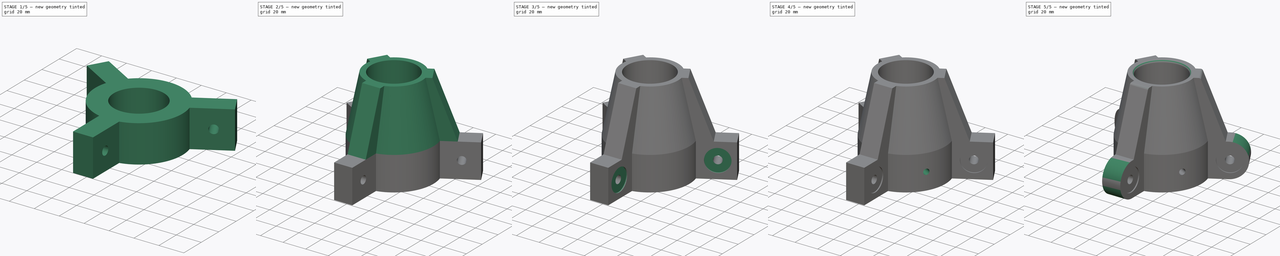
[diagram: build sequence overview — one tinted view per stage of 5, left to right]
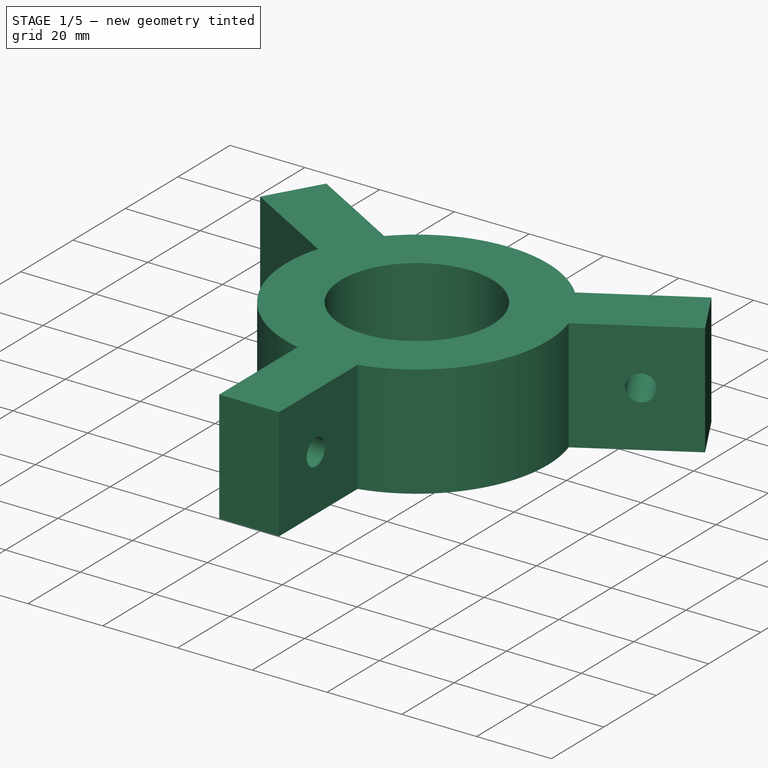
[diagram: stage 1 of 5 — iso view after this stage's code; geometry added in this stage tinted green]
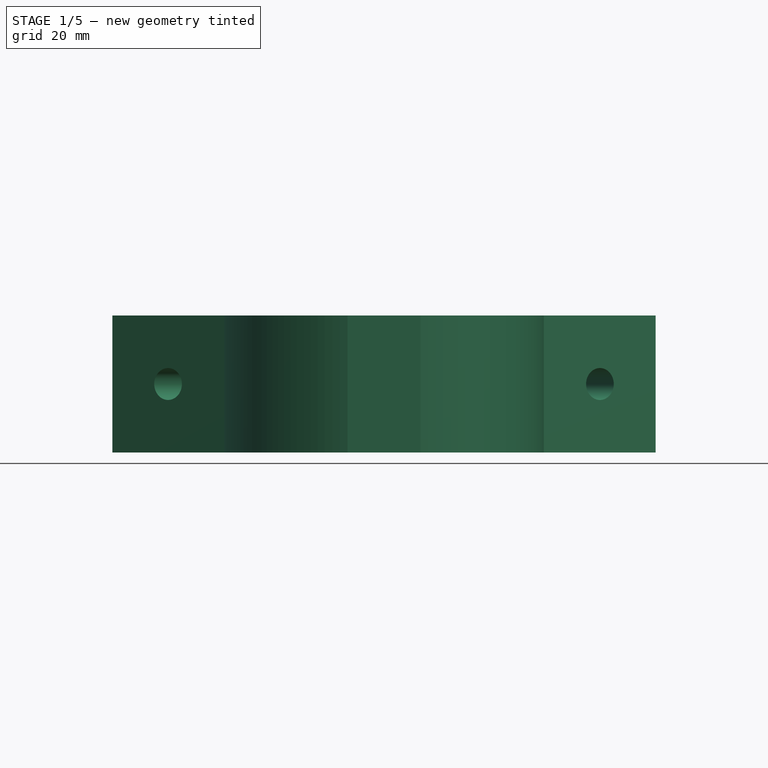
[diagram: stage 1 of 5 — front view after this stage's code; geometry added in this stage tinted green]
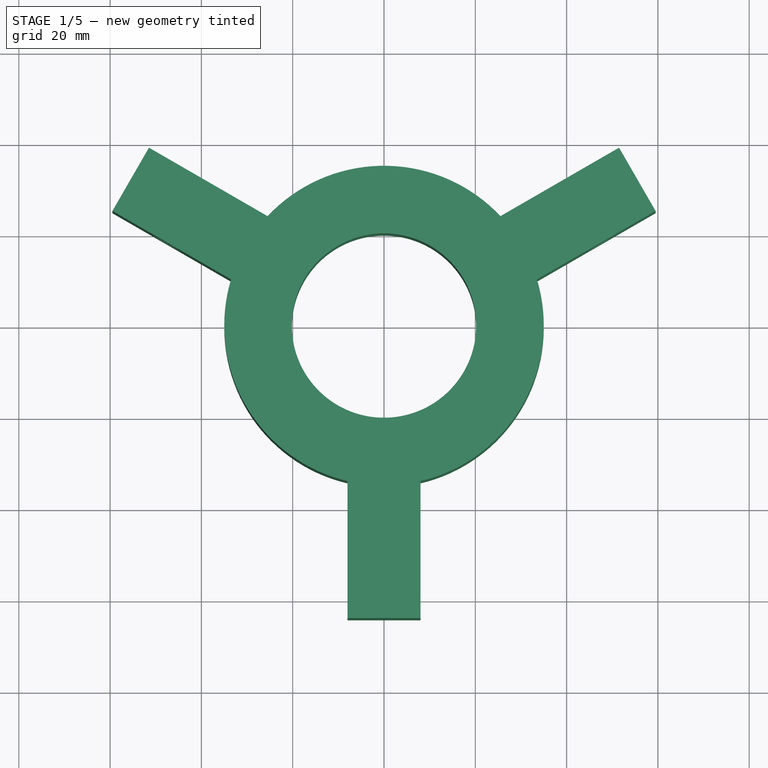
[diagram: stage 1 of 5 — top view after this stage's code; geometry added in this stage tinted green]
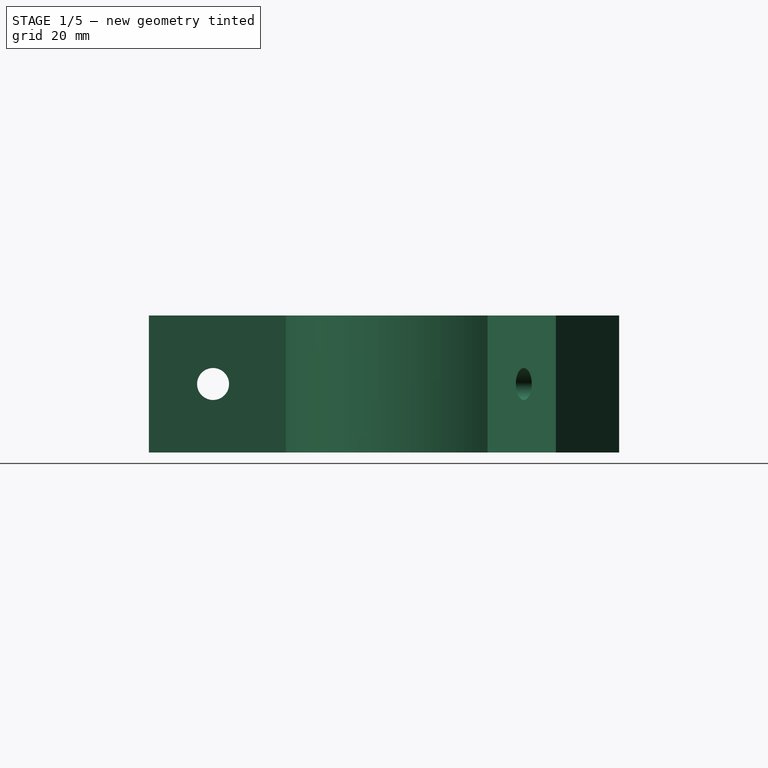
[diagram: stage 1 of 5 — right view after this stage's code; geometry added in this stage tinted green]
FCSTD DOCUMENT  (FreeCAD 0.19R)
Label: topholder
License: All rights reserved
LicenseURL: http://en.wikipedia.org/wiki/All_rights_reserved
objects: Sketcher::SketchObject×18, PartDesign::Pocket×15, PartDesign::Fillet×2, PartDesign::Pad×1, PartDesign::AdditiveLoft×1, PartDesign::Body×1
note: 57 computed .brp shape members not serialized (recipe doc carries the construction recipe); baked Part::Feature solids carry a one-line shape summary decoded from their .brp

FEATURE [Sketcher::SketchObject] Sketch001  label="SketchHinge"
  MapMode = 5
  Support = -> [XY_Plane]
  sketch-geometry (13):
    g0: ArcOfCircle CenterX=0 CenterY=0 CenterZ=0 NormalX=0 NormalY=0 NormalZ=1 AngleXU=0 Radius=35 StartAngle=2.8486 EndAngle=4.48178
    g1: LineSegment StartX=-8 StartY=-34.0735 StartZ=0 EndX=-8 EndY=-64.0735 EndZ=0
    g2: LineSegment StartX=-8 StartY=-64.0735 StartZ=0 EndX=8 EndY=-64.0735 EndZ=0
    g3: LineSegment StartX=8 StartY=-64.0735 StartZ=0 EndX=8 EndY=-34.0735 EndZ=0
    g4: LineSegment StartX=-33.5085 StartY=10.1085 StartZ=0 EndX=-59.4892 EndY=25.1085 EndZ=0
    g5: LineSegment StartX=-59.4892 StartY=25.1085 StartZ=0 EndX=-51.4892 EndY=38.9649 EndZ=0
    g6: LineSegment StartX=-51.4892 StartY=38.9649 StartZ=0 EndX=-25.5085 EndY=23.9649 EndZ=0
    g7: LineSegment StartX=25.5085 StartY=23.9649 StartZ=0 EndX=51.4892 EndY=38.9649 EndZ=0
    g8: LineSegment StartX=51.4892 StartY=38.9649 StartZ=0 EndX=59.4892 EndY=25.1085 EndZ=0
    g9: LineSegment StartX=59.4892 StartY=25.1085 StartZ=0 EndX=33.5085 EndY=10.1085 EndZ=0
    g10: Circle CenterX=0 CenterY=0 CenterZ=0 NormalX=0 NormalY=0 NormalZ=1 AngleXU=0 Radius=20.2
    g11: ArcOfCircle CenterX=0 CenterY=0 CenterZ=0 NormalX=0 NormalY=0 NormalZ=1 AngleXU=0 Radius=35 StartAngle=0.754209 EndAngle=2.38738
    g12: ArcOfCircle CenterX=0 CenterY=0 CenterZ=0 NormalX=0 NormalY=0 NormalZ=1 AngleXU=0 Radius=35 StartAngle=4.943 EndAngle=6.57617
  constraints (40):
    c: Coincident(g0,g-1)
    c: Diameter(g0) = 70
    c: Vertical(g1)
    c: Coincident(g1,g2)
    c: Horizontal(g2)
    c: Coincident(g2,g3)
    c: Vertical(g3)
    c: Coincident(g4,g5)
    c: Coincident(g5,g6)
    c: Coincident(g7,g8)
    c: Coincident(g8,g9)
    c: Parallel(g4,g6)
    c: Parallel(g7,g9)
    c: DistanceX(g2,g2) = 16  'lug_width'
    c: Equal(g2,g5)
    c: Equal(g2,g8)
    c: Angle(g9,g-2) = 1.0472
    c: Angle(g-2,g4) = 1.0472
    c: Equal(g4,g6)
    c: Equal(g1,g4)
    c: Equal(g1,g9)
    c: Equal(g9,g7)
    c: Equal(g2,g5)
    c: Equal(g2,g8)
    c: Perpendicular(g5,g4)
    c: Perpendicular(g8,g9)
    c: DistanceX(g1,g-1) = 8
    c: Coincident(g10,g0)
    c: Diameter(g10) = 40.4  'inner_diameter'
    c: Coincident(g0,g4)
    c: Coincident(g11,g6)
    c: Equal(g0,g11)
    c: Coincident(g12,g9)
    c: Coincident(g11,g7)
    c: Coincident(g0,g11)
    c: Equal(g0,g12)
    c: Coincident(g0,g1)
    c: Coincident(g12,g3)
    c: Coincident(g0,g12)
    c: DistanceY(g1,g1) = 30
FEATURE [PartDesign::Pad] Pad
  AllowMultiFace = false
  Length = 30
  Length2 = 100
  Profile = -> Sketch001
  Type = 0
FEATURE [Sketcher::SketchObject] Sketch
  MapMode = 5
  Placement = pos=(0,0,30) rot=(0,0,1;0rad)
  Support = -> [Pad]
  expr: Constraints[7] = <<SketchHinge>>.Constraints.lug_width
  expr: Constraints[37] = <<SketchHinge>>.Constraints.inner_diameter
  sketch-geometry (13):
    g0: ArcOfCircle CenterX=0 CenterY=0 CenterZ=0 NormalX=0 NormalY=0 NormalZ=1 AngleXU=0 Radius=35 StartAngle=2.8486 EndAngle=4.48178
    g1: LineSegment StartX=-8 StartY=-34.0735 StartZ=0 EndX=-8 EndY=-47.0735 EndZ=0
    g2: LineSegment StartX=-8 StartY=-47.0735 StartZ=0 EndX=8 EndY=-47.0735 EndZ=0
    g3: LineSegment StartX=8 StartY=-47.0735 StartZ=0 EndX=8 EndY=-34.0735 EndZ=0
    g4: LineSegment StartX=-33.5085 StartY=10.1085 StartZ=0 EndX=-44.7668 EndY=16.6085 EndZ=0
    g5: LineSegment StartX=-44.7668 StartY=16.6085 StartZ=0 EndX=-36.7668 EndY=30.4649 EndZ=0
    g6: LineSegment StartX=-36.7668 StartY=30.4649 StartZ=0 EndX=-25.5085 EndY=23.9649 EndZ=0
    g7: LineSegment StartX=25.5085 StartY=23.9649 StartZ=0 EndX=36.7668 EndY=30.4649 EndZ=0
    g8: LineSegment StartX=36.7668 StartY=30.4649 StartZ=0 EndX=44.7668 EndY=16.6085 EndZ=0
    g9: LineSegment StartX=44.7668 StartY=16.6085 StartZ=0 EndX=33.5085 EndY=10.1085 EndZ=0
    g10: ArcOfCircle CenterX=0 CenterY=0 CenterZ=0 NormalX=0 NormalY=0 NormalZ=1 AngleXU=0 Radius=35 StartAngle=0.754209 EndAngle=2.38738
    g11: ArcOfCircle CenterX=0 CenterY=0 CenterZ=0 NormalX=0 NormalY=0 NormalZ=1 AngleXU=0 Radius=35 StartAngle=4.943 EndAngle=6.57617
    g12: Circle CenterX=0 CenterY=0 CenterZ=0 NormalX=0 NormalY=0 NormalZ=1 AngleXU=0 Radius=20.2
  constraints (38):
    c: Diameter(g0) = 70
    c: Coincident(g0,g-1)
    c: Vertical(g1)
    c: Coincident(g1,g2)
    c: Horizontal(g2)
    c: Coincident(g2,g3)
    c: Vertical(g3)
    c: DistanceX(g2,g2) = 16
    c: Equal(g1,g3)
    c: Coincident(g4,g5)
    c: Coincident(g5,g6)
    c: Coincident(g7,g8)
    c: Coincident(g8,g9)
    c: Parallel(g4,g6)
    c: Parallel(g7,g9)
    c: Equal(g1,g4)
    c: Equal(g4,g6)
    c: Equal(g6,g7)
    c: Equal(g7,g9)
    c: Perpendicular(g5,g4)
    c: Perpendicular(g8,g9)
    c: Equal(g2,g5)
    c: Equal(g5,g8)
    c: Angle(g-2,g4) = 1.0472
    c: Angle(g9,g-2) = 1.0472
    c: Coincident(g0,g4)
    c: Coincident(g10,g6)
    c: Equal(g0,g10)
    c: Coincident(g11,g9)
    c: Coincident(g10,g7)
    c: Coincident(g0,g10)
    c: Equal(g0,g11)
    c: Coincident(g0,g1)
    c: Coincident(g11,g3)
    c: Coincident(g0,g11)
    c: DistanceY(g1,g1) = 13
    c: Coincident(g12,g0)
    c: Diameter(g12) = 40.4
FEATURE [Sketcher::SketchObject] Sketch002  label="SketchHingeHole001"
  MapMode = 5
  Placement = pos=(4,-6.9282,0) rot=(0.935113,0.250563,0.250563;1.63783rad)
  Support = -> [Pad]
  sketch-geometry (1):
    g0: Circle CenterX=50 CenterY=15 CenterZ=0 NormalX=0 NormalY=0 NormalZ=1 AngleXU=0 Radius=3.5
  constraints (3):
    c: Diameter(g0) = 7
    c: DistanceX(g-1,g0) = 50
    c: DistanceY(g-1,g0) = 15
FEATURE [PartDesign::Pocket] Pocket
  AllowMultiFace = false
  BaseFeature = -> Pad
  Length = 5
  Length2 = 100
  Profile = -> Sketch002
  Type = 1
FEATURE [Sketcher::SketchObject] CopySketch003  label="SketchHingeHole002"
  Placement = pos=(5,8.66025,-4e-15) rot=(0.186157,0.694747,0.694747;2.77349rad)
  sketch-geometry (1):
    g0: Circle CenterX=50 CenterY=15 CenterZ=0 NormalX=0 NormalY=0 NormalZ=1 AngleXU=0 Radius=3.5
  constraints (3):
    c: Diameter(g0) = 7
    c: DistanceX(g-1,g0) = 50
    c: DistanceY(g-1,g0) = 15
FEATURE [PartDesign::Pocket] Pocket001
  AllowMultiFace = false
  BaseFeature = -> Pocket
  Length = 5
  Length2 = 100
  Profile = -> CopySketch003
  Type = 1
FEATURE [Sketcher::SketchObject] CopySketch003001  label="SketchHingeHole003"
  Placement = pos=(-10,0,0) rot=(0.57735,-0.57735,-0.57735;2.0944rad)
  sketch-geometry (1):
    g0: Circle CenterX=50 CenterY=15 CenterZ=0 NormalX=0 NormalY=0 NormalZ=1 AngleXU=0 Radius=3.5
  constraints (3):
    c: Diameter(g0) = 7
    c: DistanceX(g-1,g0) = 50
    c: DistanceY(g-1,g0) = 15
FEATURE [PartDesign::Pocket] Pocket002
  AllowMultiFace = false
  BaseFeature = -> Pocket001
  Length = 5
  Length2 = 100
  Profile = -> CopySketch003001
  Type = 1
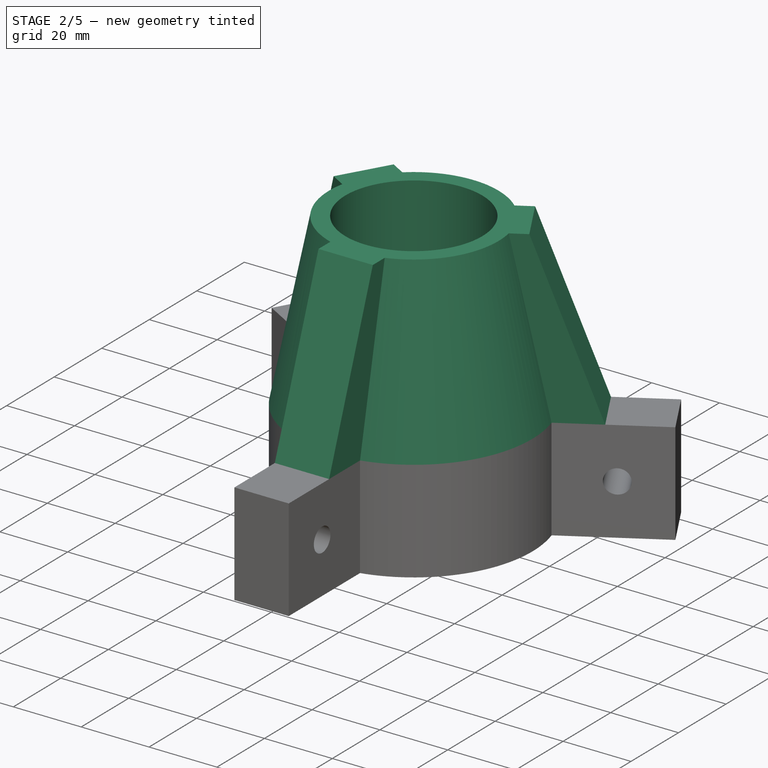
[diagram: stage 2 of 5 — iso view after this stage's code; geometry added in this stage tinted green]
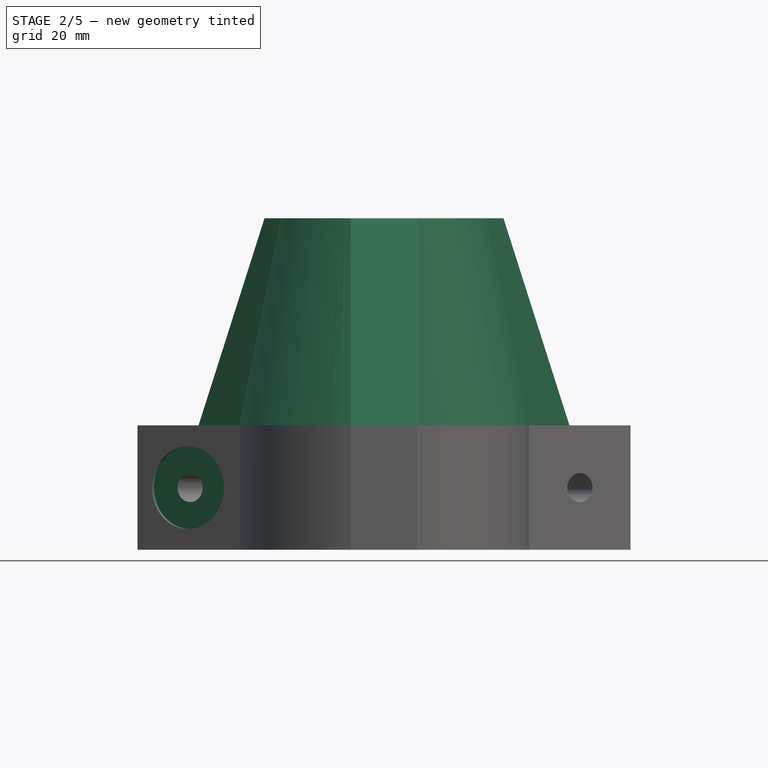
[diagram: stage 2 of 5 — front view after this stage's code; geometry added in this stage tinted green]
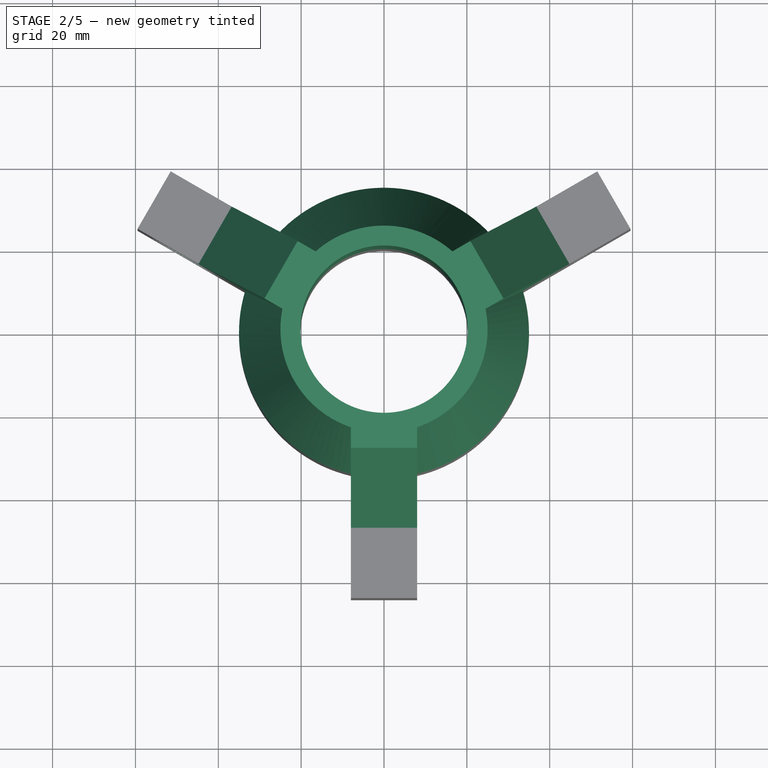
[diagram: stage 2 of 5 — top view after this stage's code; geometry added in this stage tinted green]
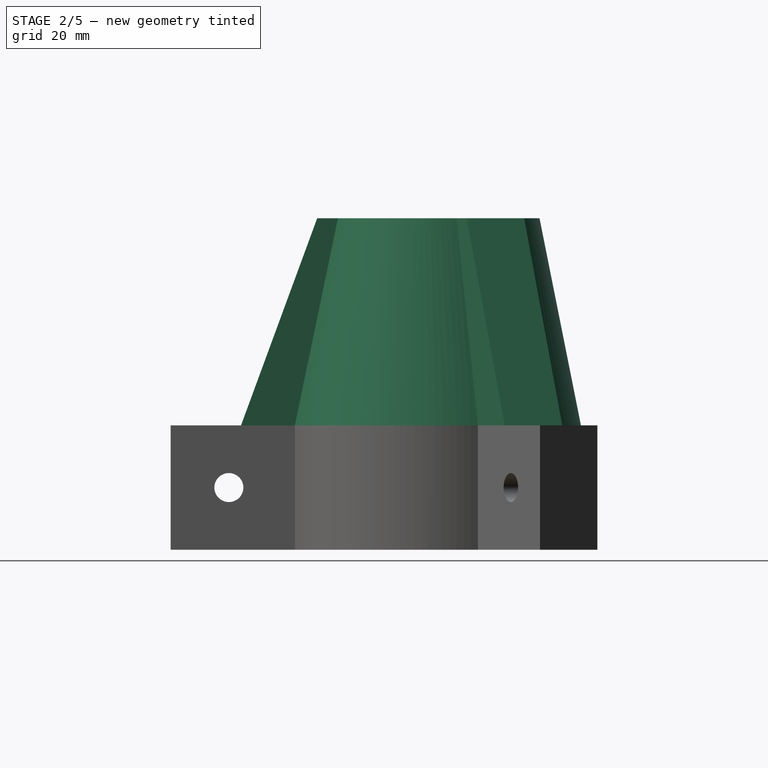
[diagram: stage 2 of 5 — right view after this stage's code; geometry added in this stage tinted green]
FEATURE [Sketcher::SketchObject] Sketch003
  AttachmentOffset = pos=(0,0,50) rot=(0,0,1;0rad)
  MapMode = 5
  Placement = pos=(0,0,80) rot=(0,0,1;0rad)
  Support = -> [Pad]
  expr: Constraints[7] = <<SketchHinge>>.Constraints.lug_width
  expr: Constraints[37] = <<SketchHinge>>.Constraints.inner_diameter
  sketch-geometry (13):
    g0: ArcOfCircle CenterX=0 CenterY=0 CenterZ=0 NormalX=0 NormalY=0 NormalZ=1 AngleXU=0 Radius=25 StartAngle=2.94372 EndAngle=4.38666
    g1: LineSegment StartX=-8 StartY=-23.6854 StartZ=0 EndX=-8 EndY=-28.6854 EndZ=0
    g2: LineSegment StartX=-8 StartY=-28.6854 StartZ=0 EndX=8 EndY=-28.6854 EndZ=0
    g3: LineSegment StartX=8 StartY=-28.6854 StartZ=0 EndX=8 EndY=-23.6854 EndZ=0
    g4: LineSegment StartX=-24.5122 StartY=4.91452 StartZ=0 EndX=-28.8423 EndY=7.41452 EndZ=0
    g5: LineSegment StartX=-28.8423 StartY=7.41452 StartZ=0 EndX=-20.8423 EndY=21.2709 EndZ=0
    g6: LineSegment StartX=-20.8423 StartY=21.2709 StartZ=0 EndX=-16.5122 EndY=18.7709 EndZ=0
    g7: LineSegment StartX=16.5122 StartY=18.7709 StartZ=0 EndX=20.8423 EndY=21.2709 EndZ=0
    g8: LineSegment StartX=20.8423 StartY=21.2709 StartZ=0 EndX=28.8423 EndY=7.41452 EndZ=0
    g9: LineSegment StartX=28.8423 StartY=7.41452 StartZ=0 EndX=24.5122 EndY=4.91452 EndZ=0
    g10: ArcOfCircle CenterX=0 CenterY=0 CenterZ=0 NormalX=0 NormalY=0 NormalZ=1 AngleXU=0 Radius=25 StartAngle=0.849328 EndAngle=2.29226
    g11: ArcOfCircle CenterX=0 CenterY=0 CenterZ=0 NormalX=0 NormalY=0 NormalZ=1 AngleXU=0 Radius=25 StartAngle=5.03812 EndAngle=6.48105
    g12: Circle CenterX=0 CenterY=0 CenterZ=0 NormalX=0 NormalY=0 NormalZ=1 AngleXU=0 Radius=20.2
  constraints (38):
    c: Diameter(g0) = 50
    c: Coincident(g0,g-1)
    c: Vertical(g1)
    c: Coincident(g1,g2)
    c: Horizontal(g2)
    c: Coincident(g2,g3)
    c: Vertical(g3)
    c: DistanceX(g2,g2) = 16
    c: Equal(g1,g3)
    c: Coincident(g4,g5)
    c: Coincident(g5,g6)
    c: Coincident(g7,g8)
    c: Coincident(g8,g9)
    c: Parallel(g4,g6)
    c: Parallel(g7,g9)
    c: Equal(g1,g4)
    c: Equal(g4,g6)
    c: Equal(g6,g7)
    c: Equal(g7,g9)
    c: Perpendicular(g5,g4)
    c: Perpendicular(g8,g9)
    c: Equal(g2,g5)
    c: Equal(g5,g8)
    c: Angle(g-2,g4) = 1.0472
    c: Angle(g9,g-2) = 1.0472
    c: Coincident(g0,g4)
    c: Coincident(g10,g6)
    c: Equal(g0,g10)
    c: Coincident(g11,g9)
    c: Coincident(g10,g7)
    c: Coincident(g0,g10)
    c: Equal(g0,g11)
    c: Coincident(g0,g1)
    c: Coincident(g11,g3)
    c: Coincident(g0,g11)
    c: DistanceY(g1,g1) = 5
    c: Coincident(g12,g0)
    c: Diameter(g12) = 40.4
FEATURE [PartDesign::AdditiveLoft] AdditiveLoft
  AllowMultiFace = false
  BaseFeature = -> Pocket002
  Closed = false
  Profile = -> Sketch
  Ruled = false
  Sections = -> [Sketch003]
FEATURE [Sketcher::SketchObject] Sketch004  label="SketchNotch001"
  MapMode = 5
  Placement = pos=(-4,-6.9282,0) rot=(0.186157,0.694747,0.694747;2.77349rad)
  Support = -> [AdditiveLoft]
  sketch-geometry (1):
    g0: Circle CenterX=50 CenterY=15 CenterZ=0 NormalX=0 NormalY=0 NormalZ=1 AngleXU=0 Radius=10
  constraints (3):
    c: Diameter(g0) = 20
    c: DistanceY(g-1,g0) = 15
    c: DistanceX(g-1,g0) = 50
FEATURE [PartDesign::Pocket] Pocket003
  AllowMultiFace = false
  BaseFeature = -> AdditiveLoft
  Length = 1
  Length2 = 100
  Profile = -> Sketch004
  Reversed = true
  Type = 0
FEATURE [Sketcher::SketchObject] CopySketch005
  MapMode = 5
  Placement = pos=(-8,0,0) rot=(0.57735,-0.57735,-0.57735;2.0944rad)
  Support = -> [AdditiveLoft]
  sketch-geometry (1):
    g0: Circle CenterX=50 CenterY=15 CenterZ=0 NormalX=0 NormalY=0 NormalZ=1 AngleXU=0 Radius=10
  constraints (3):
    c: Diameter(g0) = 20
    c: DistanceY(g-1,g0) = 15
    c: DistanceX(g-1,g0) = 50
FEATURE [PartDesign::Pocket] Pocket004
  AllowMultiFace = false
  BaseFeature = -> Pocket003
  Length = 1
  Length2 = 100
  Profile = -> CopySketch005
  Type = 0
FEATURE [Sketcher::SketchObject] CopySketch005001
  MapMode = 5
  Placement = pos=(4,6.9282,0) rot=(0.186157,0.694747,0.694747;2.77349rad)
  Support = -> [Pocket004]
  sketch-geometry (1):
    g0: Circle CenterX=50 CenterY=15 CenterZ=0 NormalX=0 NormalY=0 NormalZ=1 AngleXU=0 Radius=10
  constraints (3):
    c: Diameter(g0) = 20
    c: DistanceY(g-1,g0) = 15
    c: DistanceX(g-1,g0) = 50
FEATURE [PartDesign::Pocket] Pocket005
  AllowMultiFace = false
  BaseFeature = -> Pocket004
  Length = 1
  Length2 = 100
  Profile = -> CopySketch005001
  Type = 0
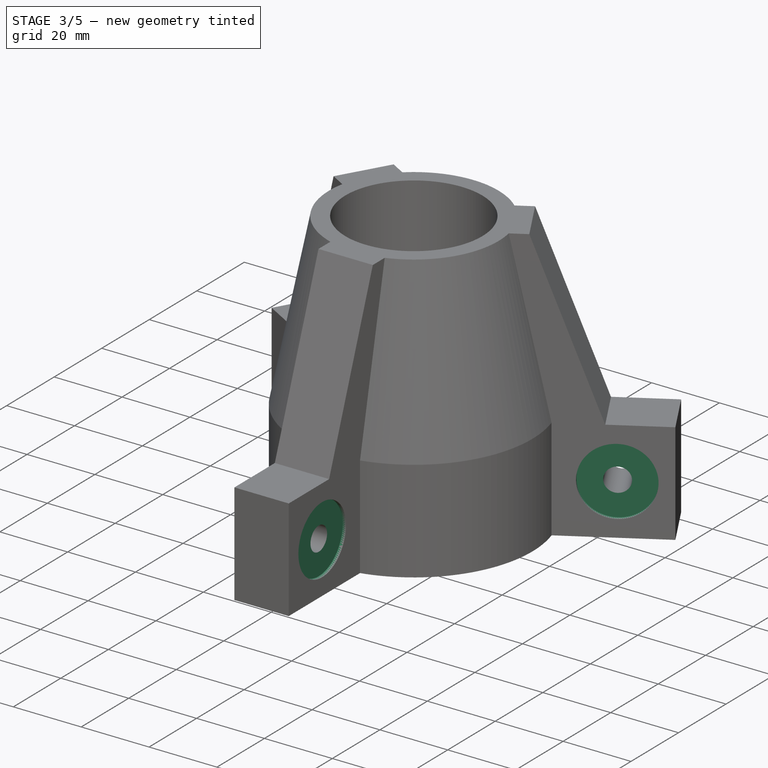
[diagram: stage 3 of 5 — iso view after this stage's code; geometry added in this stage tinted green]
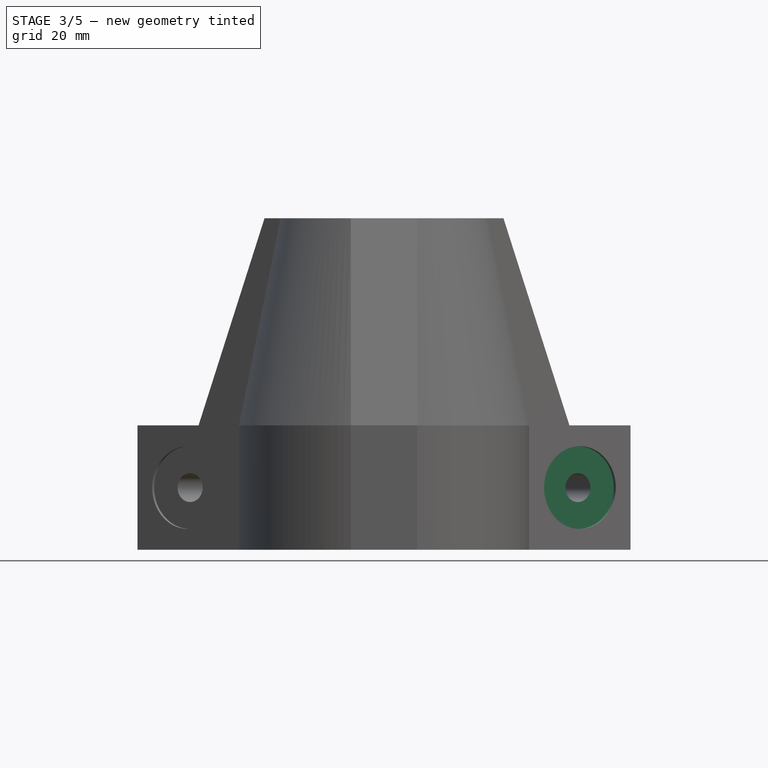
[diagram: stage 3 of 5 — front view after this stage's code; geometry added in this stage tinted green]
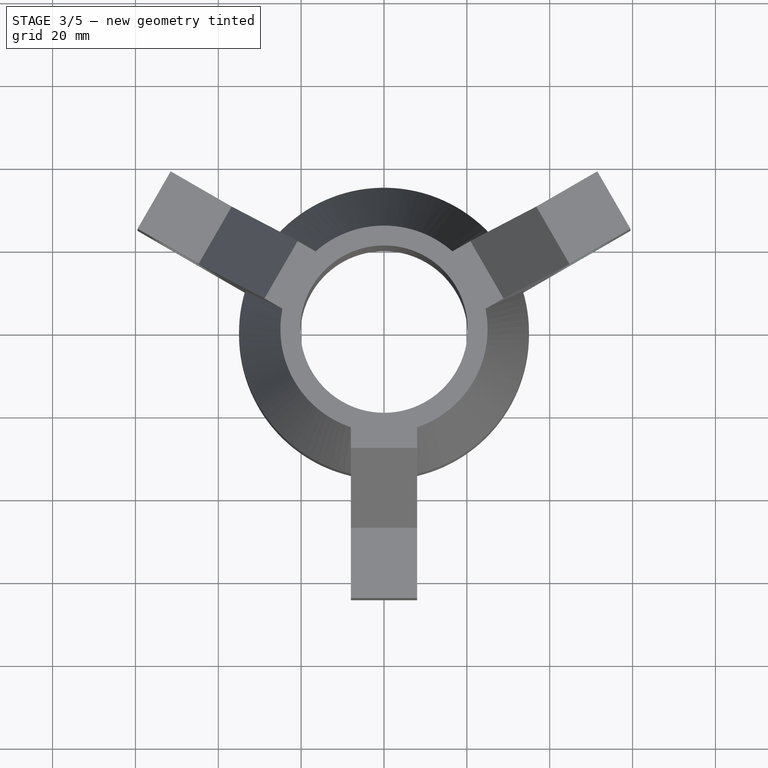
[diagram: stage 3 of 5 — top view after this stage's code; geometry added in this stage tinted green]
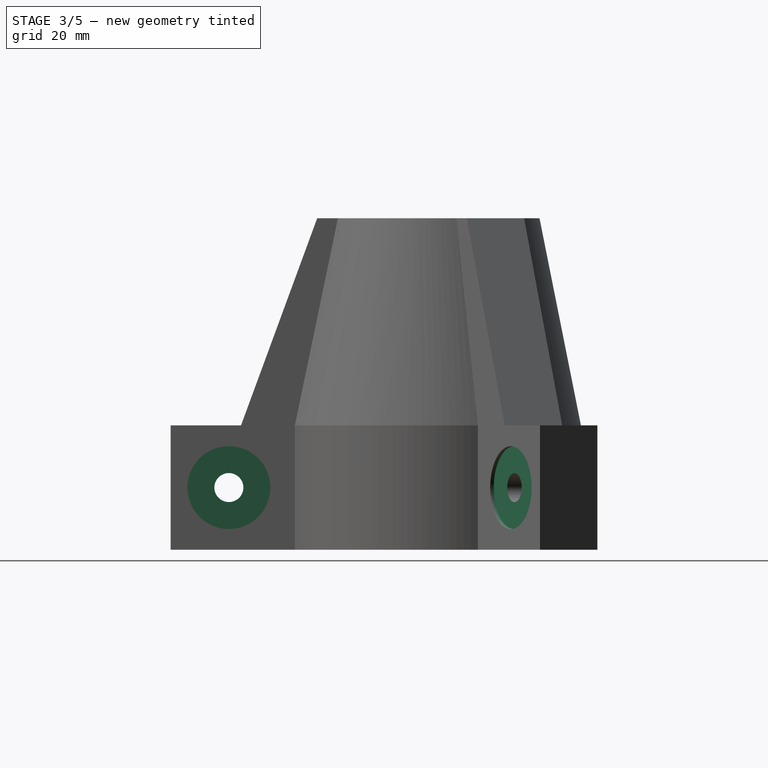
[diagram: stage 3 of 5 — right view after this stage's code; geometry added in this stage tinted green]
FEATURE [Sketcher::SketchObject] CopySketch005002
  MapMode = 5
  Placement = pos=(4,-6.9282,0) rot=(0.935113,0.250563,0.250563;1.63783rad)
  Support = -> [Pocket005]
  sketch-geometry (1):
    g0: Circle CenterX=50 CenterY=15 CenterZ=0 NormalX=0 NormalY=0 NormalZ=1 AngleXU=0 Radius=10
  constraints (3):
    c: Diameter(g0) = 20
    c: DistanceY(g-1,g0) = 15
    c: DistanceX(g-1,g0) = 50
FEATURE [PartDesign::Pocket] Pocket006
  AllowMultiFace = false
  BaseFeature = -> Pocket005
  Length = 1
  Length2 = 100
  Profile = -> CopySketch005002
  Type = 0
FEATURE [Sketcher::SketchObject] CopySketch005003
  MapMode = 5
  Placement = pos=(-4,6.9282,0) rot=(0.935113,0.250563,0.250563;1.63783rad)
  Support = -> [Pocket006]
  sketch-geometry (1):
    g0: Circle CenterX=50 CenterY=15 CenterZ=0 NormalX=0 NormalY=0 NormalZ=1 AngleXU=0 Radius=10
  constraints (3):
    c: Diameter(g0) = 20
    c: DistanceY(g-1,g0) = 15
    c: DistanceX(g-1,g0) = 50
FEATURE [PartDesign::Pocket] Pocket007
  AllowMultiFace = false
  BaseFeature = -> Pocket006
  Length = 1
  Length2 = 100
  Profile = -> CopySketch005003
  Reversed = true
  Type = 0
FEATURE [Sketcher::SketchObject] CopySketch005004
  MapMode = 5
  Placement = pos=(8,0,0) rot=(0.57735,-0.57735,-0.57735;2.0944rad)
  Support = -> [Pocket007]
  sketch-geometry (1):
    g0: Circle CenterX=50 CenterY=15 CenterZ=0 NormalX=0 NormalY=0 NormalZ=1 AngleXU=0 Radius=10
  constraints (3):
    c: Diameter(g0) = 20
    c: DistanceY(g-1,g0) = 15
    c: DistanceX(g-1,g0) = 50
FEATURE [PartDesign::Pocket] Pocket008
  AllowMultiFace = false
  BaseFeature = -> Pocket007
  Length = 1
  Length2 = 100
  Profile = -> CopySketch005004
  Reversed = true
  Type = 0
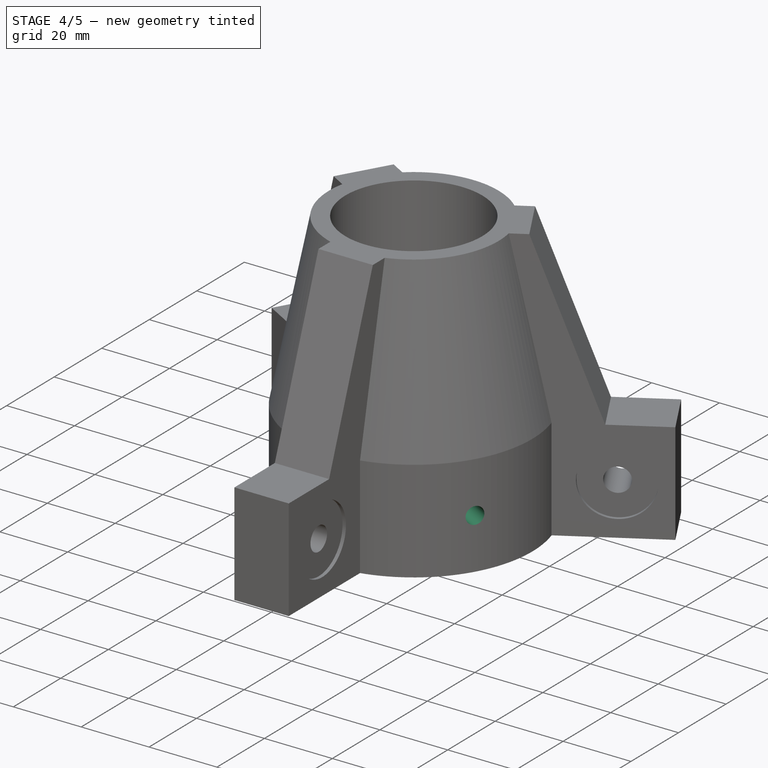
[diagram: stage 4 of 5 — iso view after this stage's code; geometry added in this stage tinted green]
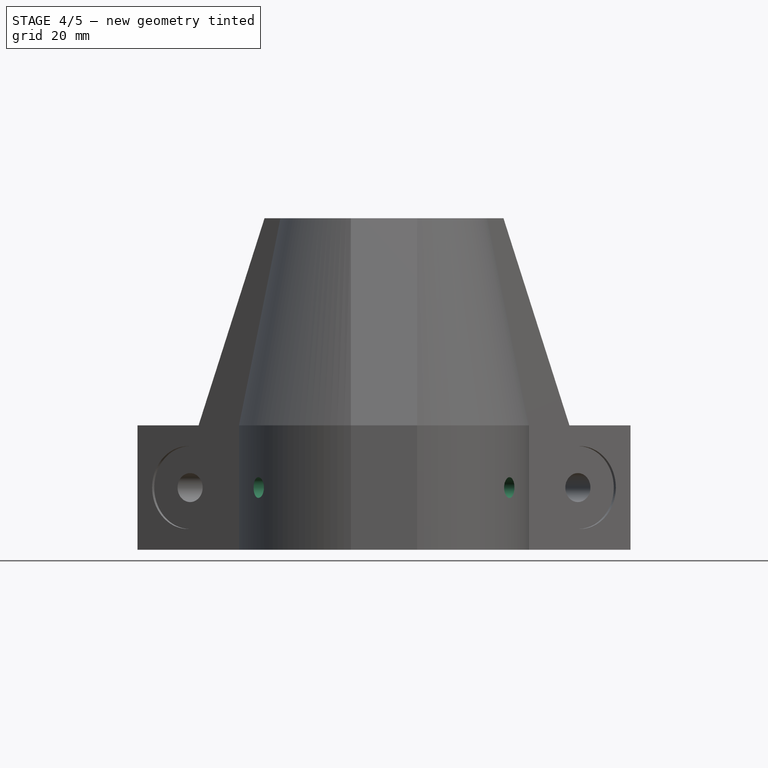
[diagram: stage 4 of 5 — front view after this stage's code; geometry added in this stage tinted green]
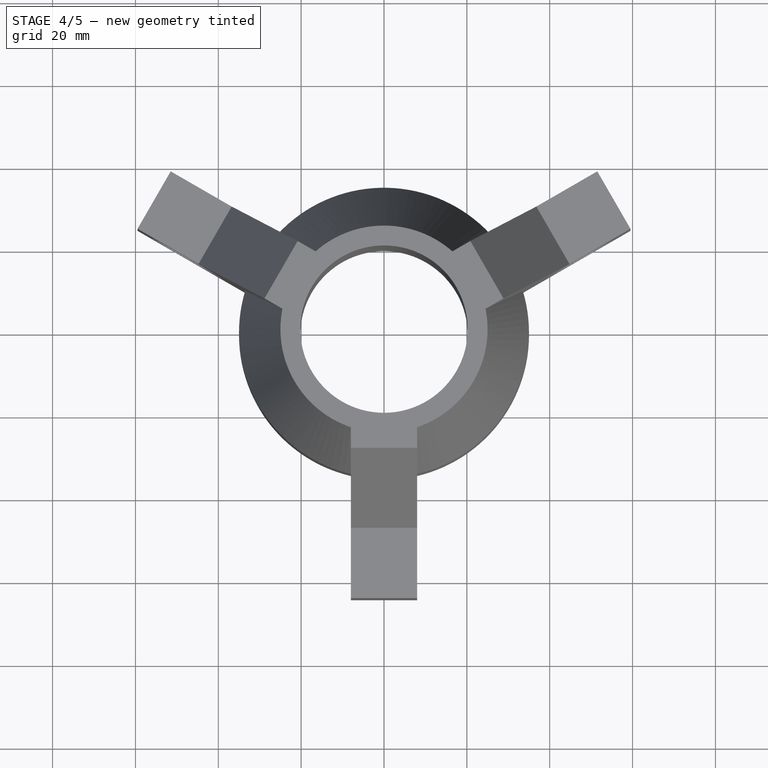
[diagram: stage 4 of 5 — top view after this stage's code; geometry added in this stage tinted green]
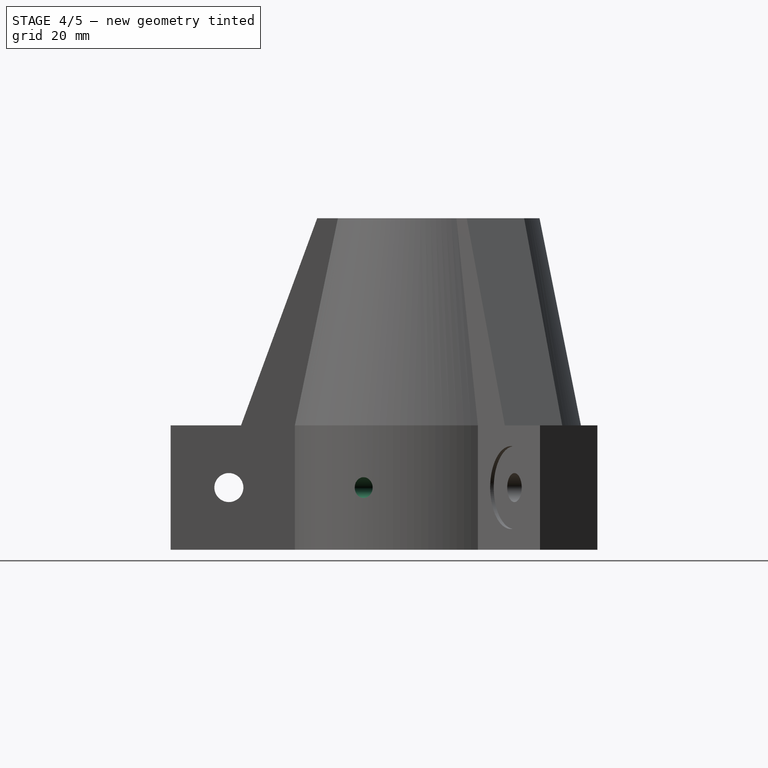
[diagram: stage 4 of 5 — right view after this stage's code; geometry added in this stage tinted green]
FEATURE [Sketcher::SketchObject] Sketch005  label="SketchMountHole001"
  AttachmentOffset = pos=(0,0,0) rot=(0,1,0;1.0472rad)
  MapMode = 5
  Placement = pos=(0,0,0) rot=(0.774597,0.447214,0.447214;1.82348rad)
  Support = -> [XZ_Plane]
  sketch-geometry (1):
    g0: Circle CenterX=0 CenterY=15 CenterZ=0 NormalX=0 NormalY=0 NormalZ=1 AngleXU=0 Radius=2.5
  constraints (3):
    c: Diameter(g0) = 5
    c: PointOnObject(g0,g-2)
    c: DistanceY(g-1,g0) = 15
FEATURE [PartDesign::Pocket] Pocket009
  AllowMultiFace = false
  BaseFeature = -> Pocket008
  Length = 0
  Length2 = 100
  Profile = -> Sketch005
  Type = 3
  UpToFace = -> Pocket008 [Face19]
FEATURE [Sketcher::SketchObject] CopySketch006  label="SketchMountHole002"
  Placement = pos=(0,0,0) rot=(1,0,0;1.5708rad)
  sketch-geometry (1):
    g0: Circle CenterX=0 CenterY=15 CenterZ=0 NormalX=0 NormalY=0 NormalZ=1 AngleXU=0 Radius=2.5
  constraints (3):
    c: Diameter(g0) = 5
    c: PointOnObject(g0,g-2)
    c: DistanceY(g-1,g0) = 15
FEATURE [PartDesign::Pocket] Pocket010
  AllowMultiFace = false
  BaseFeature = -> Pocket009
  Length = 0
  Length2 = 100
  Profile = -> CopySketch006
  Type = 3
  UpToFace = -> Pocket009 [Face1]
FEATURE [Sketcher::SketchObject] CopySketch006001  label="SketchMountHole003"
  Placement = pos=(0,0,0) rot=(0.377964,0.654654,0.654654;2.41886rad)
  sketch-geometry (1):
    g0: Circle CenterX=0 CenterY=15 CenterZ=0 NormalX=0 NormalY=0 NormalZ=1 AngleXU=0 Radius=2.5
  constraints (3):
    c: Diameter(g0) = 5
    c: PointOnObject(g0,g-2)
    c: DistanceY(g-1,g0) = 15
FEATURE [PartDesign::Pocket] Pocket011
  AllowMultiFace = false
  BaseFeature = -> Pocket010
  Length = 5
  Length2 = 100
  Profile = -> CopySketch006001
  Type = 3
  UpToFace = -> Pocket010 [Face13]
FEATURE [Sketcher::SketchObject] Sketch006  label="SketchNut001"
  AttachmentOffset = pos=(0,0,0) rot=(0,1,0;4.18879rad)
  MapMode = 5
  Placement = pos=(0,0,0) rot=(-0.377964,0.654654,0.654654;3.86433rad)
  Support = -> [XZ_Plane]
  sketch-geometry (7):
    g0: LineSegment StartX=4.65 StartY=15 StartZ=0 EndX=2.325 EndY=19.027 EndZ=0
    g1: LineSegment StartX=2.325 StartY=19.027 StartZ=0 EndX=-2.325 EndY=19.027 EndZ=0
    g2: LineSegment StartX=-2.325 StartY=19.027 StartZ=0 EndX=-4.65 EndY=15 EndZ=0
    g3: LineSegment StartX=-4.65 StartY=15 StartZ=0 EndX=-2.325 EndY=10.973 EndZ=0
    g4: LineSegment StartX=-2.325 StartY=10.973 StartZ=0 EndX=2.325 EndY=10.973 EndZ=0
    g5: LineSegment StartX=2.325 StartY=10.973 StartZ=0 EndX=4.65 EndY=15 EndZ=0
    g6: Circle [constr] CenterX=0 CenterY=15 CenterZ=0 NormalX=0 NormalY=0 NormalZ=1 AngleXU=0 Radius=4.65
  constraints (17):
    c: Coincident(g0,g1)
    c: Coincident(g1,g2)
    c: Coincident(g2,g3)
    c: Coincident(g3,g4)
    c: Coincident(g4,g5)
    c: Coincident(g5,g0)
    c: Equal(g0, g1-g5) x5
    c: PointOnObject(g0,g6)
    c: PointOnObject(g1,g6)
    c: PointOnObject(g2,g6)
    c: PointOnObject(g3,g6)
    c: PointOnObject(g4,g6)
    c: PointOnObject(g5,g6)
    c: PointOnObject(g6,g-2)
    c: Parallel(g4,g-1)
    c: Diameter(g6) = 9.3
    c: DistanceY(g-1,g6) = 15
FEATURE [PartDesign::Pocket] Pocket012
  AllowMultiFace = false
  BaseFeature = -> Pocket011
  Length = 25
  Length2 = 100
  Profile = -> Sketch006
  Type = 0
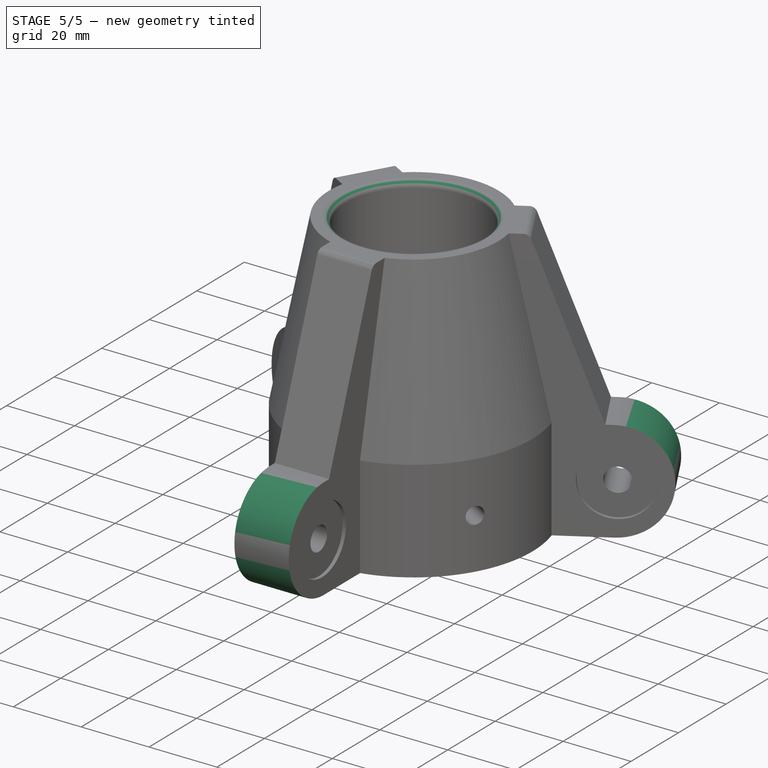
[diagram: stage 5 of 5 — iso view after this stage's code; geometry added in this stage tinted green]
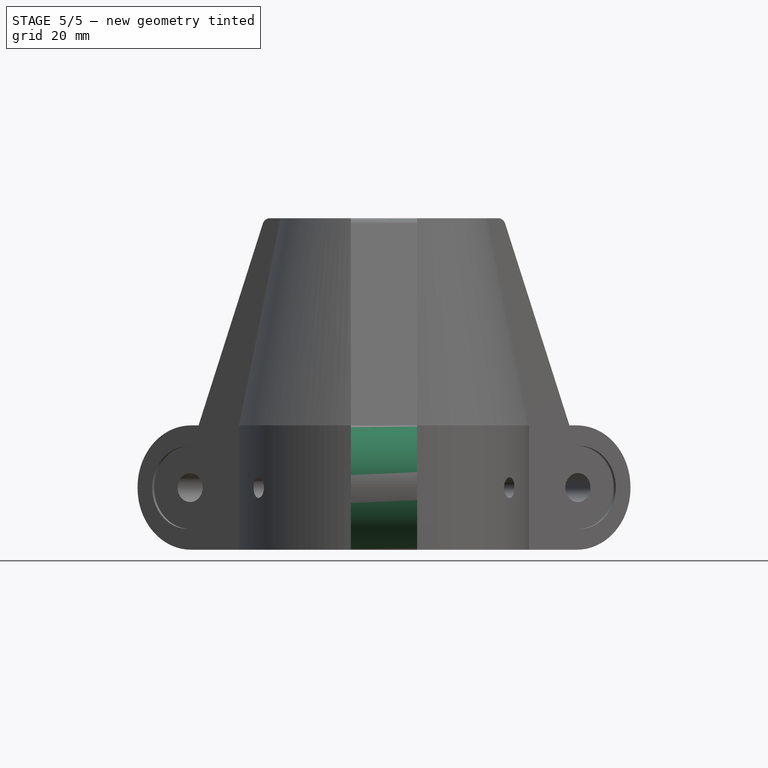
[diagram: stage 5 of 5 — front view after this stage's code; geometry added in this stage tinted green]
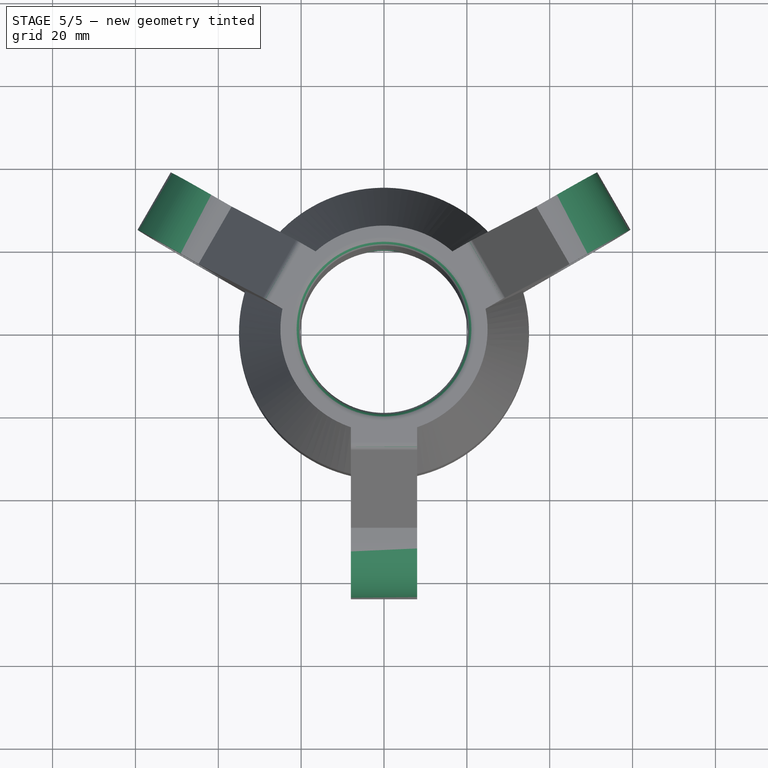
[diagram: stage 5 of 5 — top view after this stage's code; geometry added in this stage tinted green]
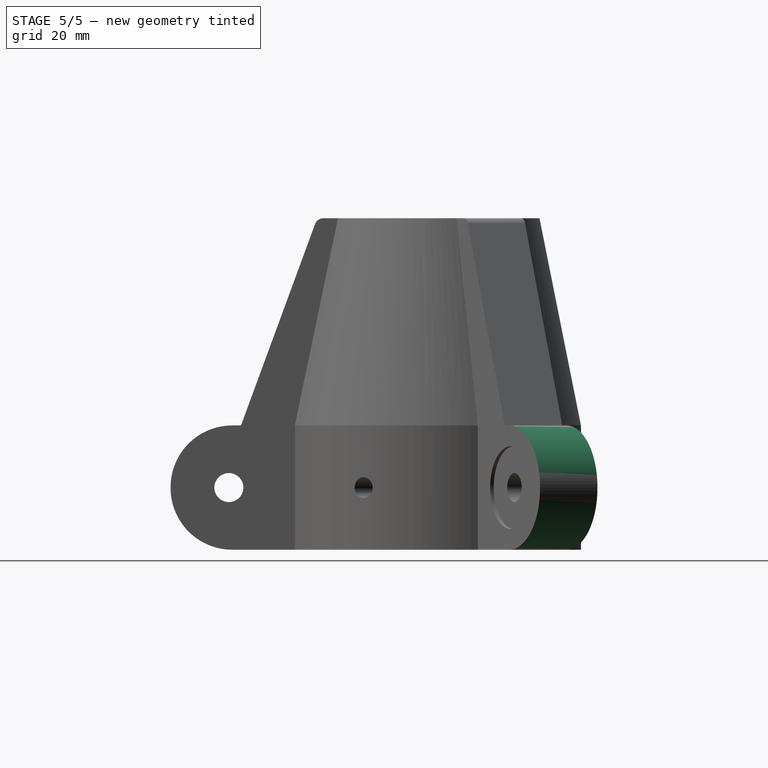
[diagram: stage 5 of 5 — right view after this stage's code; geometry added in this stage tinted green]
FEATURE [Sketcher::SketchObject] CopySketch007
  Placement = pos=(0,0,0) rot=(1,0,0;1.5708rad)
  sketch-geometry (7):
    g0: LineSegment StartX=4.65 StartY=15 StartZ=0 EndX=2.325 EndY=19.027 EndZ=0
    g1: LineSegment StartX=2.325 StartY=19.027 StartZ=0 EndX=-2.325 EndY=19.027 EndZ=0
    g2: LineSegment StartX=-2.325 StartY=19.027 StartZ=0 EndX=-4.65 EndY=15 EndZ=0
    g3: LineSegment StartX=-4.65 StartY=15 StartZ=0 EndX=-2.325 EndY=10.973 EndZ=0
    g4: LineSegment StartX=-2.325 StartY=10.973 StartZ=0 EndX=2.325 EndY=10.973 EndZ=0
    g5: LineSegment StartX=2.325 StartY=10.973 StartZ=0 EndX=4.65 EndY=15 EndZ=0
    g6: Circle [constr] CenterX=0 CenterY=15 CenterZ=0 NormalX=0 NormalY=0 NormalZ=1 AngleXU=0 Radius=4.65
  constraints (17):
    c: Coincident(g0,g1)
    c: Coincident(g1,g2)
    c: Coincident(g2,g3)
    c: Coincident(g3,g4)
    c: Coincident(g4,g5)
    c: Coincident(g5,g0)
    c: Equal(g0, g1-g5) x5
    c: PointOnObject(g0,g6)
    c: PointOnObject(g1,g6)
    c: PointOnObject(g2,g6)
    c: PointOnObject(g3,g6)
    c: PointOnObject(g4,g6)
    c: PointOnObject(g5,g6)
    c: PointOnObject(g6,g-2)
    c: Parallel(g4,g-1)
    c: Diameter(g6) = 9.3
    c: DistanceY(g-1,g6) = 15
FEATURE [PartDesign::Pocket] Pocket013
  AllowMultiFace = false
  BaseFeature = -> Pocket012
  Length = 25
  Length2 = 100
  Profile = -> CopySketch007
  Type = 0
FEATURE [Sketcher::SketchObject] CopySketch007001
  Placement = pos=(0,0,0) rot=(0.377964,0.654654,0.654654;2.41886rad)
  sketch-geometry (7):
    g0: LineSegment StartX=4.65 StartY=15 StartZ=0 EndX=2.325 EndY=19.027 EndZ=0
    g1: LineSegment StartX=2.325 StartY=19.027 StartZ=0 EndX=-2.325 EndY=19.027 EndZ=0
    g2: LineSegment StartX=-2.325 StartY=19.027 StartZ=0 EndX=-4.65 EndY=15 EndZ=0
    g3: LineSegment StartX=-4.65 StartY=15 StartZ=0 EndX=-2.325 EndY=10.973 EndZ=0
    g4: LineSegment StartX=-2.325 StartY=10.973 StartZ=0 EndX=2.325 EndY=10.973 EndZ=0
    g5: LineSegment StartX=2.325 StartY=10.973 StartZ=0 EndX=4.65 EndY=15 EndZ=0
    g6: Circle [constr] CenterX=0 CenterY=15 CenterZ=0 NormalX=0 NormalY=0 NormalZ=1 AngleXU=0 Radius=4.65
  constraints (17):
    c: Coincident(g0,g1)
    c: Coincident(g1,g2)
    c: Coincident(g2,g3)
    c: Coincident(g3,g4)
    c: Coincident(g4,g5)
    c: Coincident(g5,g0)
    c: Equal(g0, g1-g5) x5
    c: PointOnObject(g0,g6)
    c: PointOnObject(g1,g6)
    c: PointOnObject(g2,g6)
    c: PointOnObject(g3,g6)
    c: PointOnObject(g4,g6)
    c: PointOnObject(g5,g6)
    c: PointOnObject(g6,g-2)
    c: Parallel(g4,g-1)
    c: Diameter(g6) = 9.3
    c: DistanceY(g-1,g6) = 15
FEATURE [PartDesign::Pocket] Pocket014
  AllowMultiFace = false
  BaseFeature = -> Pocket013
  Length = 25
  Length2 = 100
  Profile = -> CopySketch007001
  Type = 0
FEATURE [PartDesign::Fillet] Fillet
  Base = -> Pocket014 [Edge12,Edge20,Edge34,Edge16,Edge53,Edge40]
  BaseFeature = -> Pocket014
  Radius = 14.9
  SupportTransform = false
FEATURE [PartDesign::Fillet] Fillet001
  Base = -> Fillet [Edge20,Edge102,Edge98,Edge106,Edge107]
  BaseFeature = -> Fillet
  Radius = 2
  SupportTransform = false
FEATURE [PartDesign::Body] Body
  Group = -> [Sketch,Sketch001,Pad,Sketch002,Pocket,Pocket001,Pocket002,AdditiveLoft,Sketch004,Pocket003,Pocket004,Pocket005,Pocket006,Pocket007,Pocket008,Sketch005,Pocket009,Pocket010,Pocket011,Sketch006,Pocket012,Pocket013,Pocket014,Fillet,Fillet001]
  Origin = -> Origin
  Tip = -> Fillet001
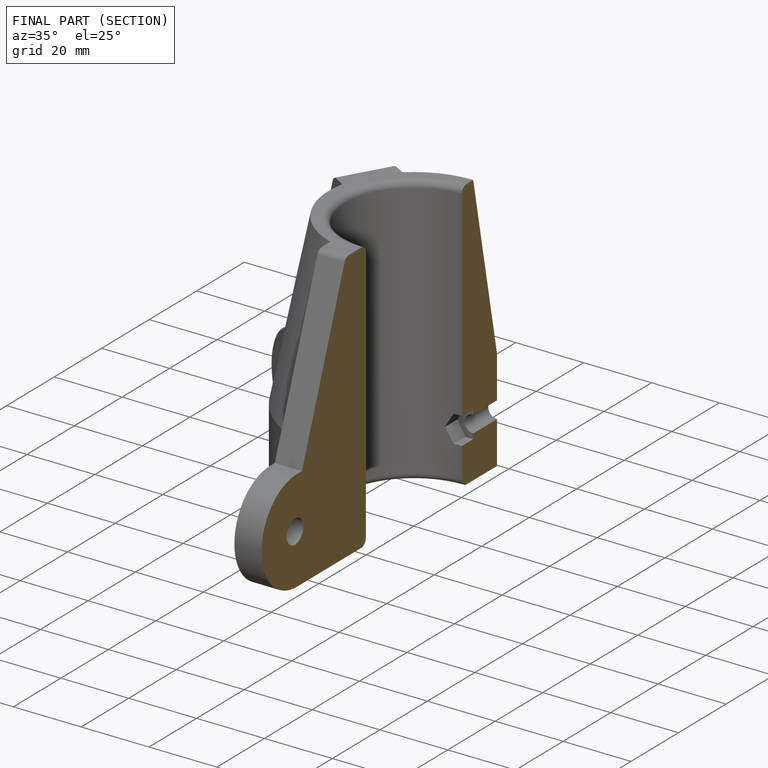
[diagram: finished part — half-section view (interior)]
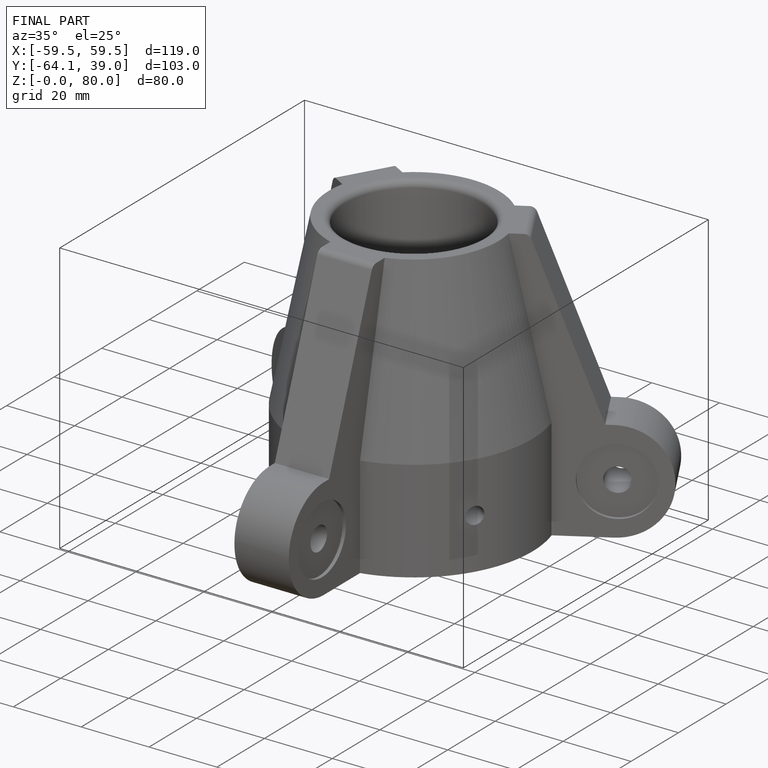
[diagram: finished part — iso view with bounding-box wireframe]
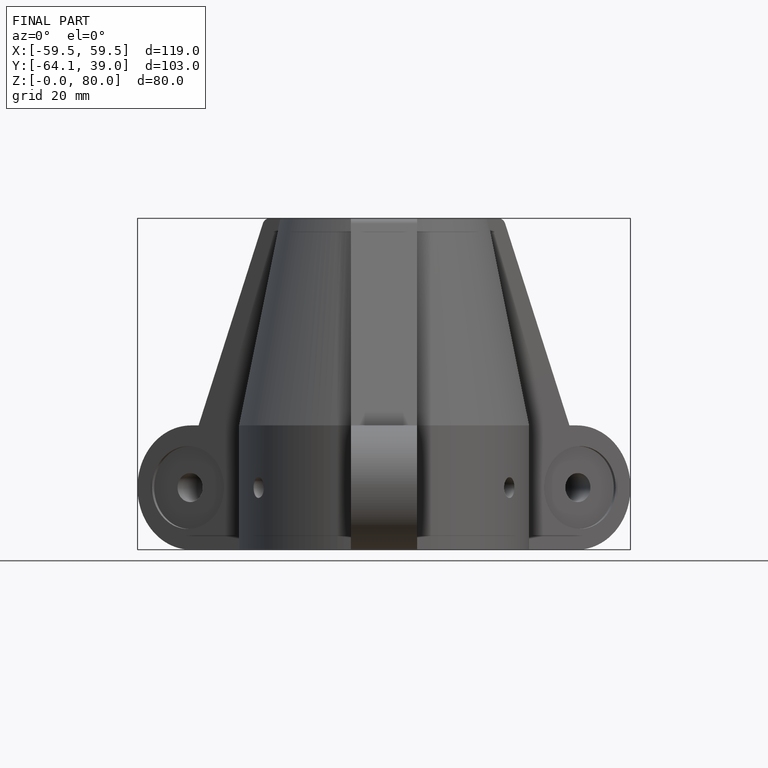
[diagram: finished part — front view with bounding-box wireframe]
